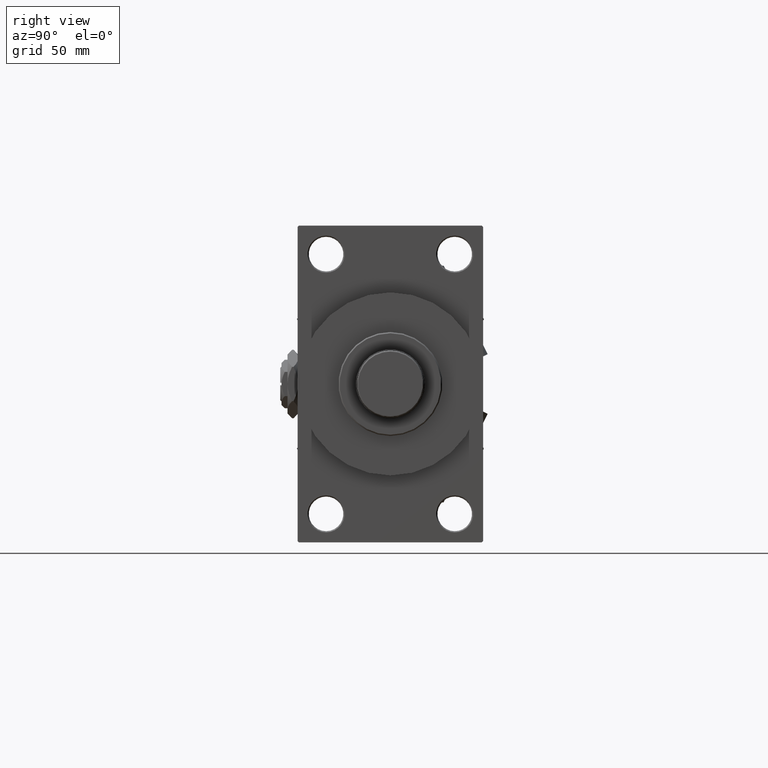
[diagram: clean part render]
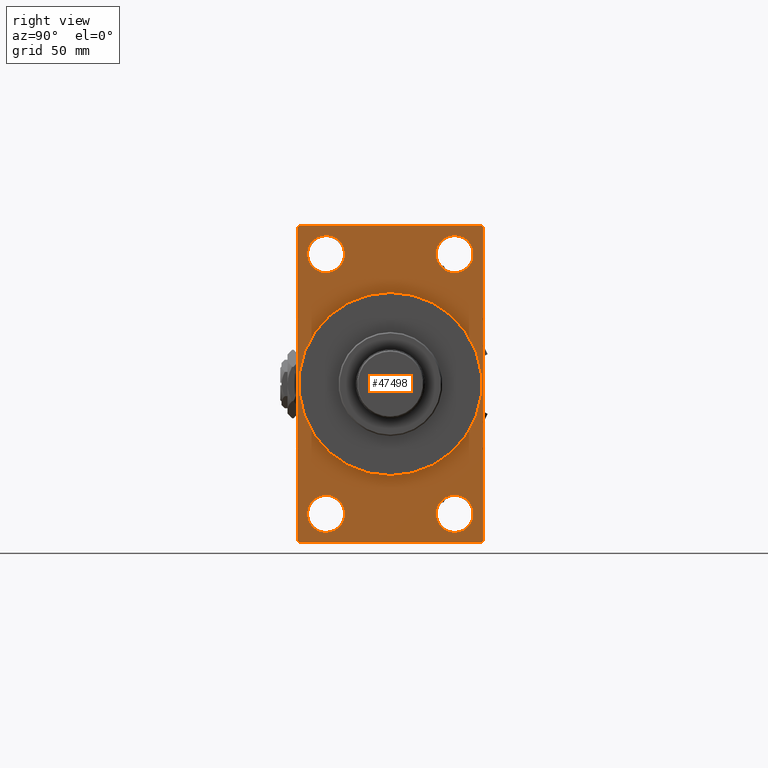
[diagram: same view with one face highlighted and labeled with its STEP entity id]
A machine part, right view. The second image highlights one B-rep face of the part: STEP entity #47498.
In plain terms, the highlighted planar face has unit normal (-1, 0, 0).
Its self-contained STEP definition (entity closure, byte-faithful):
#56 = EDGE_CURVE ( 'NONE', #35261, #14380, #34658, .T. ) ;
#133 = CARTESIAN_POINT ( 'NONE',  ( 167.9999999999999716, 37.49999999999999289, -63.50000000000001421 ) ) ;
#219 = DIRECTION ( 'NONE',  ( 0.000000000000000000, -1.000000000000000000, -1.850371707708594563E-16 ) ) ;
#230 = VERTEX_POINT ( 'NONE', #44956 ) ;
#1226 = FACE_OUTER_BOUND ( 'NONE', #7156, .T. ) ;
#1403 = EDGE_CURVE ( 'NONE', #31684, #26546, #7116, .T. ) ;
#1453 = LINE ( 'NONE', #44875, #34567 ) ;
#1791 = EDGE_CURVE ( 'NONE', #41659, #32044, #13689, .T. ) ;
#1898 = CARTESIAN_POINT ( 'NONE',  ( 167.9999999999999716, 26.00000000000000000, 44.99999999999998579 ) ) ;
#1994 = CIRCLE ( 'NONE', #43871, 37.00000000000000000 ) ;
#2557 = CARTESIAN_POINT ( 'NONE',  ( 167.9999999999999716, 37.49999999999999289, -63.50000000000001421 ) ) ;
#2767 = AXIS2_PLACEMENT_3D ( 'NONE', #7280, #7034, #22194 ) ;
#3174 = ORIENTED_EDGE ( 'NONE', *, *, #1791, .T. ) ;
#3223 = LINE ( 'NONE', #34584, #33767 ) ;
#3771 = CARTESIAN_POINT ( 'NONE',  ( 167.9999999999999716, -25.99999999999999645, -52.49999999999999289 ) ) ;
#4678 = EDGE_CURVE ( 'NONE', #32763, #14399, #6415, .T. ) ;
#4760 = VECTOR ( 'NONE', #20232, 1000.000000000000114 ) ;
#4796 = DIRECTION ( 'NONE',  ( 0.000000000000000000, 0.000000000000000000, 1.000000000000000000 ) ) ;
#5351 = VERTEX_POINT ( 'NONE', #12435 ) ;
#6292 = CARTESIAN_POINT ( 'NONE',  ( 167.9999999999999716, 4.531193156845206793E-15, -37.00000000000000000 ) ) ;
#6415 = LINE ( 'NONE', #2557, #4760 ) ;
#7034 = DIRECTION ( 'NONE',  ( -1.000000000000000000, 0.000000000000000000, -0.000000000000000000 ) ) ;
#7116 = CIRCLE ( 'NONE', #29303, 37.00000000000000000 ) ;
#7156 = EDGE_LOOP ( 'NONE', ( #38059, #38391, #44665, #42601, #22957, #39434, #19232, #17591 ) ) ;
#7280 = CARTESIAN_POINT ( 'NONE',  ( 167.9999999999999716, 26.00000000000000000, 52.49999999999999289 ) ) ;
#7312 = EDGE_CURVE ( 'NONE', #41226, #5351, #14755, .T. ) ;
#7476 = EDGE_LOOP ( 'NONE', ( #31921, #40287 ) ) ;
#7880 = EDGE_CURVE ( 'NONE', #5351, #41226, #22946, .T. ) ;
#8419 = FACE_BOUND ( 'NONE', #50376, .T. ) ;
#10645 = CARTESIAN_POINT ( 'NONE',  ( 167.9999999999999716, 0.000000000000000000, 37.00000000000000000 ) ) ;
#11571 = CARTESIAN_POINT ( 'NONE',  ( 167.9999999999999716, -25.99999999999999645, 52.50000000000000000 ) ) ;
#12110 = VECTOR ( 'NONE', #219, 1000.000000000000000 ) ;
#12435 = CARTESIAN_POINT ( 'NONE',  ( 167.9999999999999716, -25.99999999999999645, -60.00000000000000000 ) ) ;
#12577 = CARTESIAN_POINT ( 'NONE',  ( 167.9999999999999716, 37.50000000000000000, 63.99999999999998579 ) ) ;
#12702 = VERTEX_POINT ( 'NONE', #12730 ) ;
#12730 = CARTESIAN_POINT ( 'NONE',  ( 167.9999999999999716, 26.00000000000000000, -44.99999999999998579 ) ) ;
#12769 = DIRECTION ( 'NONE',  ( -1.000000000000000000, 0.000000000000000000, -0.000000000000000000 ) ) ;
#12830 = DIRECTION ( 'NONE',  ( 0.000000000000000000, -5.421010862427522170E-17, -1.000000000000000000 ) ) ;
#13452 = DIRECTION ( 'NONE',  ( 0.000000000000000000, 0.000000000000000000, 1.000000000000000000 ) ) ;
#13689 = CIRCLE ( 'NONE', #48157, 7.500000000000007105 ) ;
#13778 = DIRECTION ( 'NONE',  ( -0.000000000000000000, -0.7071067811865524577, -0.7071067811865426878 ) ) ;
#14380 = VERTEX_POINT ( 'NONE', #46882 ) ;
#14399 = VERTEX_POINT ( 'NONE', #133 ) ;
#14518 = EDGE_CURVE ( 'NONE', #32313, #230, #39939, .T. ) ;
#14755 = CIRCLE ( 'NONE', #26231, 7.500000000000007105 ) ;
#15164 = EDGE_LOOP ( 'NONE', ( #49127, #27108 ) ) ;
#15618 = EDGE_CURVE ( 'NONE', #21437, #35261, #29649, .T. ) ;
#16503 = ORIENTED_EDGE ( 'NONE', *, *, #7880, .T. ) ;
#17591 = ORIENTED_EDGE ( 'NONE', *, *, #49037, .T. ) ;
#18095 = AXIS2_PLACEMENT_3D ( 'NONE', #25108, #20219, #43614 ) ;
#18107 = CARTESIAN_POINT ( 'NONE',  ( 167.9999999999999716, 26.00000000000000000, -60.00000000000000000 ) ) ;
#18171 = CARTESIAN_POINT ( 'NONE',  ( 167.9999999999999716, 0.000000000000000000, 0.000000000000000000 ) ) ;
#18280 = CARTESIAN_POINT ( 'NONE',  ( 167.9999999999999716, 26.00000000000000000, 60.00000000000000000 ) ) ;
#18441 = CIRCLE ( 'NONE', #34857, 7.500000000000007105 ) ;
#18869 = EDGE_CURVE ( 'NONE', #21437, #14399, #31838, .T. ) ;
#19009 = EDGE_CURVE ( 'NONE', #40704, #25794, #46883, .T. ) ;
#19232 = ORIENTED_EDGE ( 'NONE', *, *, #56, .T. ) ;
#20108 = EDGE_LOOP ( 'NONE', ( #16503, #47571 ) ) ;
#20161 = DIRECTION ( 'NONE',  ( 0.000000000000000000, -1.000000000000000000, -1.850371707708594563E-16 ) ) ;
#20204 = VERTEX_POINT ( 'NONE', #18107 ) ;
#20219 = DIRECTION ( 'NONE',  ( -1.000000000000000000, 0.000000000000000000, -0.000000000000000000 ) ) ;
#20232 = DIRECTION ( 'NONE',  ( -0.000000000000000000, 0.7071067811865376918, 0.7071067811865573427 ) ) ;
#20613 = AXIS2_PLACEMENT_3D ( 'NONE', #44316, #21174, #41221 ) ;
#20874 = CARTESIAN_POINT ( 'NONE',  ( 167.9999999999999716, 37.00000000000000000, 63.99999999999998579 ) ) ;
#20965 = CARTESIAN_POINT ( 'NONE',  ( 167.9999999999999716, -25.99999999999999645, 60.00000000000000711 ) ) ;
#21174 = DIRECTION ( 'NONE',  ( -1.000000000000000000, 0.000000000000000000, -0.000000000000000000 ) ) ;
#21185 = DIRECTION ( 'NONE',  ( -1.000000000000000000, 0.000000000000000000, -0.000000000000000000 ) ) ;
#21437 = VERTEX_POINT ( 'NONE', #31128 ) ;
#21708 = CARTESIAN_POINT ( 'NONE',  ( 167.9999999999999716, -37.49999999999999289, -63.50000000000002842 ) ) ;
#21900 = DIRECTION ( 'NONE',  ( 0.000000000000000000, 0.000000000000000000, -1.000000000000000000 ) ) ;
#22194 = DIRECTION ( 'NONE',  ( 0.000000000000000000, 0.000000000000000000, 1.000000000000000000 ) ) ;
#22946 = CIRCLE ( 'NONE', #48376, 7.500000000000007105 ) ;
#22957 = ORIENTED_EDGE ( 'NONE', *, *, #18869, .F. ) ;
#23583 = CARTESIAN_POINT ( 'NONE',  ( 167.9999999999999716, 37.50000000000000000, 63.99999999999998579 ) ) ;
#24108 = CIRCLE ( 'NONE', #33175, 7.500000000000007105 ) ;
#24739 = CIRCLE ( 'NONE', #20613, 7.500000000000007105 ) ;
#24748 = AXIS2_PLACEMENT_3D ( 'NONE', #27905, #12769, #44095 ) ;
#25108 = CARTESIAN_POINT ( 'NONE',  ( 167.9999999999999716, 0.000000000000000000, 0.000000000000000000 ) ) ;
#25794 = VERTEX_POINT ( 'NONE', #18280 ) ;
#25953 = EDGE_CURVE ( 'NONE', #32044, #41659, #18441, .T. ) ;
#26231 = AXIS2_PLACEMENT_3D ( 'NONE', #36029, #32176, #28056 ) ;
#26389 = DIRECTION ( 'NONE',  ( 0.000000000000000000, 0.000000000000000000, -1.000000000000000000 ) ) ;
#26521 = EDGE_CURVE ( 'NONE', #25794, #40704, #36522, .T. ) ;
#26546 = VERTEX_POINT ( 'NONE', #10645 ) ;
#27108 = ORIENTED_EDGE ( 'NONE', *, *, #1403, .F. ) ;
#27235 = DIRECTION ( 'NONE',  ( -1.000000000000000000, 0.000000000000000000, -0.000000000000000000 ) ) ;
#27826 = EDGE_CURVE ( 'NONE', #20204, #12702, #24108, .T. ) ;
#27905 = CARTESIAN_POINT ( 'NONE',  ( 167.9999999999999716, 26.00000000000000000, 52.49999999999999289 ) ) ;
#28056 = DIRECTION ( 'NONE',  ( 0.000000000000000000, 0.000000000000000000, 1.000000000000000000 ) ) ;
#28192 = FACE_BOUND ( 'NONE', #15164, .T. ) ;
#28703 = PLANE ( 'NONE',  #18095 ) ;
#28790 = CARTESIAN_POINT ( 'NONE',  ( 167.9999999999999716, -25.99999999999999645, 44.99999999999999289 ) ) ;
#28977 = ORIENTED_EDGE ( 'NONE', *, *, #25953, .T. ) ;
#29180 = EDGE_CURVE ( 'NONE', #26546, #31684, #1994, .T. ) ;
#29303 = AXIS2_PLACEMENT_3D ( 'NONE', #18171, #34114, #26389 ) ;
#29649 = LINE ( 'NONE', #49438, #37085 ) ;
#31005 = VERTEX_POINT ( 'NONE', #38755 ) ;
#31128 = CARTESIAN_POINT ( 'NONE',  ( 167.9999999999999716, 37.50000000000000000, 63.49999999999998579 ) ) ;
#31684 = VERTEX_POINT ( 'NONE', #6292 ) ;
#31838 = LINE ( 'NONE', #12577, #34575 ) ;
#31921 = ORIENTED_EDGE ( 'NONE', *, *, #19009, .T. ) ;
#32044 = VERTEX_POINT ( 'NONE', #28790 ) ;
#32176 = DIRECTION ( 'NONE',  ( -1.000000000000000000, 0.000000000000000000, -0.000000000000000000 ) ) ;
#32313 = VERTEX_POINT ( 'NONE', #21708 ) ;
#32504 = DIRECTION ( 'NONE',  ( 0.000000000000000000, 0.000000000000000000, -1.000000000000000000 ) ) ;
#32744 = EDGE_CURVE ( 'NONE', #31005, #32313, #41441, .T. ) ;
#32756 = CARTESIAN_POINT ( 'NONE',  ( 167.9999999999999716, 0.000000000000000000, 0.000000000000000000 ) ) ;
#32763 = VERTEX_POINT ( 'NONE', #47557 ) ;
#33175 = AXIS2_PLACEMENT_3D ( 'NONE', #36112, #21185, #36881 ) ;
#33767 = VECTOR ( 'NONE', #20161, 1000.000000000000000 ) ;
#34114 = DIRECTION ( 'NONE',  ( 1.000000000000000000, 0.000000000000000000, 0.000000000000000000 ) ) ;
#34567 = VECTOR ( 'NONE', #13778, 1000.000000000000000 ) ;
#34575 = VECTOR ( 'NONE', #12830, 1000.000000000000000 ) ;
#34584 = CARTESIAN_POINT ( 'NONE',  ( 167.9999999999999716, 37.49999999999999289, -64.00000000000000000 ) ) ;
#34658 = LINE ( 'NONE', #23583, #12110 ) ;
#34857 = AXIS2_PLACEMENT_3D ( 'NONE', #11571, #27235, #50374 ) ;
#35261 = VERTEX_POINT ( 'NONE', #20874 ) ;
#36029 = CARTESIAN_POINT ( 'NONE',  ( 167.9999999999999716, -25.99999999999999645, -52.49999999999999289 ) ) ;
#36091 = DIRECTION ( 'NONE',  ( 0.000000000000000000, 0.7071067811865573427, -0.7071067811865378028 ) ) ;
#36112 = CARTESIAN_POINT ( 'NONE',  ( 167.9999999999999716, 26.00000000000000000, -52.49999999999999289 ) ) ;
#36522 = CIRCLE ( 'NONE', #2767, 7.500000000000007105 ) ;
#36864 = CARTESIAN_POINT ( 'NONE',  ( 167.9999999999999716, -36.99999999999999289, -64.00000000000001421 ) ) ;
#36881 = DIRECTION ( 'NONE',  ( 0.000000000000000000, 0.000000000000000000, 1.000000000000000000 ) ) ;
#37085 = VECTOR ( 'NONE', #41470, 1000.000000000000114 ) ;
#38028 = ORIENTED_EDGE ( 'NONE', *, *, #50126, .T. ) ;
#38059 = ORIENTED_EDGE ( 'NONE', *, *, #32744, .T. ) ;
#38272 = VECTOR ( 'NONE', #21900, 1000.000000000000000 ) ;
#38391 = ORIENTED_EDGE ( 'NONE', *, *, #14518, .T. ) ;
#38755 = CARTESIAN_POINT ( 'NONE',  ( 167.9999999999999716, -37.49999999999999289, 63.50000000000000000 ) ) ;
#39434 = ORIENTED_EDGE ( 'NONE', *, *, #15618, .T. ) ;
#39939 = LINE ( 'NONE', #36864, #41958 ) ;
#40256 = DIRECTION ( 'NONE',  ( -1.000000000000000000, 0.000000000000000000, -0.000000000000000000 ) ) ;
#40269 = FACE_BOUND ( 'NONE', #20108, .T. ) ;
#40287 = ORIENTED_EDGE ( 'NONE', *, *, #26521, .T. ) ;
#40462 = ORIENTED_EDGE ( 'NONE', *, *, #27826, .T. ) ;
#40704 = VERTEX_POINT ( 'NONE', #1898 ) ;
#41221 = DIRECTION ( 'NONE',  ( 0.000000000000000000, 0.000000000000000000, 1.000000000000000000 ) ) ;
#41226 = VERTEX_POINT ( 'NONE', #42571 ) ;
#41441 = LINE ( 'NONE', #49662, #38272 ) ;
#41470 = DIRECTION ( 'NONE',  ( 0.000000000000000000, -0.7071067811865474617, 0.7071067811865474617 ) ) ;
#41659 = VERTEX_POINT ( 'NONE', #20965 ) ;
#41958 = VECTOR ( 'NONE', #36091, 1000.000000000000000 ) ;
#42571 = CARTESIAN_POINT ( 'NONE',  ( 167.9999999999999716, -25.99999999999999645, -44.99999999999998579 ) ) ;
#42601 = ORIENTED_EDGE ( 'NONE', *, *, #4678, .T. ) ;
#43614 = DIRECTION ( 'NONE',  ( -0.000000000000000000, 0.000000000000000000, 1.000000000000000000 ) ) ;
#43871 = AXIS2_PLACEMENT_3D ( 'NONE', #32756, #48669, #32504 ) ;
#44095 = DIRECTION ( 'NONE',  ( 0.000000000000000000, 0.000000000000000000, 1.000000000000000000 ) ) ;
#44316 = CARTESIAN_POINT ( 'NONE',  ( 167.9999999999999716, 26.00000000000000000, -52.49999999999999289 ) ) ;
#44665 = ORIENTED_EDGE ( 'NONE', *, *, #49977, .F. ) ;
#44875 = CARTESIAN_POINT ( 'NONE',  ( 167.9999999999999716, -37.49999999999999289, 63.50000000000000000 ) ) ;
#44956 = CARTESIAN_POINT ( 'NONE',  ( 167.9999999999999716, -36.99999999999999289, -64.00000000000001421 ) ) ;
#45559 = CARTESIAN_POINT ( 'NONE',  ( 167.9999999999999716, -25.99999999999999645, 52.50000000000000000 ) ) ;
#46882 = CARTESIAN_POINT ( 'NONE',  ( 167.9999999999999716, -37.00000000000001421, 63.99999999999997158 ) ) ;
#46883 = CIRCLE ( 'NONE', #24748, 7.500000000000007105 ) ;
#47498 = ADVANCED_FACE ( 'NONE', ( #8419, #40269, #48230, #47713, #28192, #1226 ), #28703, .F. ) ;
#47557 = CARTESIAN_POINT ( 'NONE',  ( 167.9999999999999716, 37.00000000000002132, -64.00000000000000000 ) ) ;
#47571 = ORIENTED_EDGE ( 'NONE', *, *, #7312, .T. ) ;
#47713 = FACE_BOUND ( 'NONE', #7476, .T. ) ;
#48157 = AXIS2_PLACEMENT_3D ( 'NONE', #45559, #48636, #13452 ) ;
#48230 = FACE_BOUND ( 'NONE', #49540, .T. ) ;
#48376 = AXIS2_PLACEMENT_3D ( 'NONE', #3771, #40256, #4796 ) ;
#48636 = DIRECTION ( 'NONE',  ( -1.000000000000000000, 0.000000000000000000, -0.000000000000000000 ) ) ;
#48669 = DIRECTION ( 'NONE',  ( 1.000000000000000000, 0.000000000000000000, 0.000000000000000000 ) ) ;
#49037 = EDGE_CURVE ( 'NONE', #14380, #31005, #1453, .T. ) ;
#49127 = ORIENTED_EDGE ( 'NONE', *, *, #29180, .F. ) ;
#49438 = CARTESIAN_POINT ( 'NONE',  ( 167.9999999999999716, 37.00000000000000000, 63.99999999999998579 ) ) ;
#49540 = EDGE_LOOP ( 'NONE', ( #40462, #38028 ) ) ;
#49662 = CARTESIAN_POINT ( 'NONE',  ( 167.9999999999999716, -37.49999999999999289, 63.99999999999997158 ) ) ;
#49977 = EDGE_CURVE ( 'NONE', #32763, #230, #3223, .T. ) ;
#50126 = EDGE_CURVE ( 'NONE', #12702, #20204, #24739, .T. ) ;
#50374 = DIRECTION ( 'NONE',  ( 0.000000000000000000, 0.000000000000000000, 1.000000000000000000 ) ) ;
#50376 = EDGE_LOOP ( 'NONE', ( #28977, #3174 ) ) ;